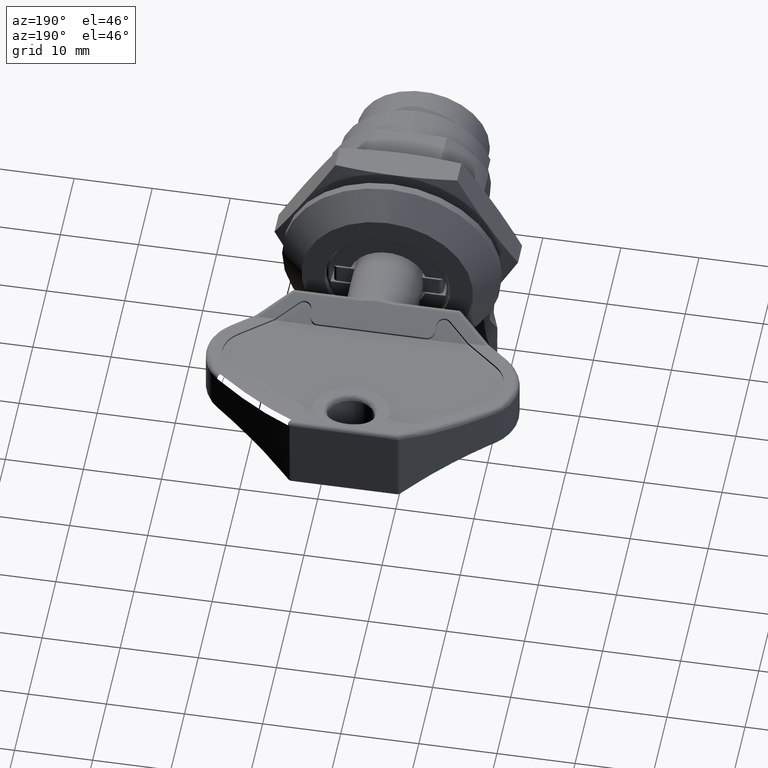
[diagram: clean part render]
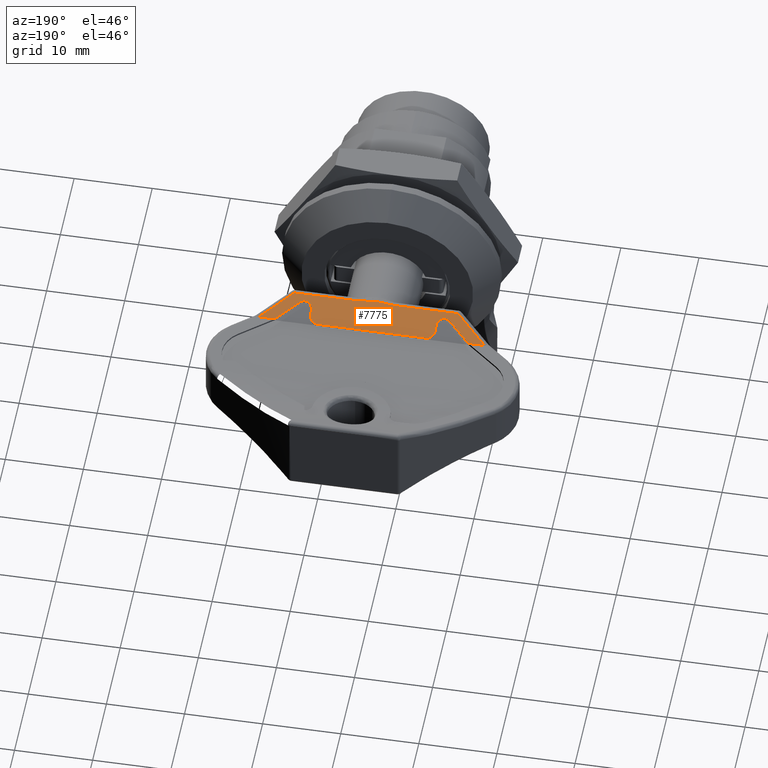
[diagram: same view with one face highlighted and labeled with its STEP entity id]
A machine part, auxiliary view. The second image highlights one B-rep face of the part: STEP entity #7775.
In plain terms, the highlighted planar face has unit normal (0, 0.4722, 0.8815).
Its self-contained STEP definition (entity closure, byte-faithful):
#41 = CARTESIAN_POINT ( 'NONE',  ( 2.068098806985044558, 36.88578643762680542, 11.77190012270027353 ) ) ;
#201 = CARTESIAN_POINT ( 'NONE',  ( 10.98586503355847555, 33.89057519146783903, 13.37647633497109467 ) ) ;
#263 = CARTESIAN_POINT ( 'NONE',  ( 9.801387449991239009, 33.84408355914582245, 13.40138380760066106 ) ) ;
#390 = DIRECTION ( 'NONE',  ( 0.7321513523004811175, 0.6004130123786246553, -0.3216498280599611737 ) ) ;
#454 = ORIENTED_EDGE ( 'NONE', *, *, #11848, .T. ) ;
#468 = EDGE_CURVE ( 'NONE', #15996, #15397, #18636, .T. ) ;
#530 = VERTEX_POINT ( 'NONE', #12694 ) ;
#562 = DIRECTION ( 'NONE',  ( 0.7321513523004833379, -0.6004130123786249884, 0.3216498280599550674 ) ) ;
#594 = ORIENTED_EDGE ( 'NONE', *, *, #15618, .T. ) ;
#674 = EDGE_CURVE ( 'NONE', #7319, #6873, #19051, .T. ) ;
#1136 = CARTESIAN_POINT ( 'NONE',  ( 8.011291028470781228, 34.01060382006741634, 13.31217652496409976 ) ) ;
#1239 = DIRECTION ( 'NONE',  ( 3.689814809305226357E-15, 0.4722214125153967323, 0.8814799700287939688 ) ) ;
#1337 = AXIS2_PLACEMENT_3D ( 'NONE', #11785, #1239, #19107 ) ;
#1443 = EDGE_CURVE ( 'NONE', #2561, #9745, #9863, .T. ) ;
#1500 = CARTESIAN_POINT ( 'NONE',  ( 2.068098806985057880, 35.80000000000011084, 12.35357142857171731 ) ) ;
#1536 = EDGE_CURVE ( 'NONE', #3117, #15996, #9769, .T. ) ;
#1636 = VERTEX_POINT ( 'NONE', #16438 ) ;
#1648 = CARTESIAN_POINT ( 'NONE',  ( 11.85404161314945704, 33.98885770955217112, 13.32382859536662423 ) ) ;
#1695 = VERTEX_POINT ( 'NONE', #9372 ) ;
#1709 = CARTESIAN_POINT ( 'NONE',  ( 9.244953549421287775, 33.87997746789123710, 13.38215492791560912 ) ) ;
#1743 = CARTESIAN_POINT ( 'NONE',  ( 10.27668981839960338, 33.84404871556767347, 13.40141359913249808 ) ) ;
#1839 = CARTESIAN_POINT ( 'NONE',  ( 11.48077395445161208, 33.94665565000695295, 13.34643421753339076 ) ) ;
#1952 = CARTESIAN_POINT ( 'NONE',  ( 2.482312369357855264, 37.29999999999990479, 11.55000000000041460 ) ) ;
#1974 = ORIENTED_EDGE ( 'NONE', *, *, #5186, .T. ) ;
#2031 = LINE ( 'NONE', #15569, #6052 ) ;
#2047 = CARTESIAN_POINT ( 'NONE',  ( 19.25313789094918349, 34.80000000000013927, 12.88928571428582970 ) ) ;
#2372 = CARTESIAN_POINT ( 'NONE',  ( 24.50330021323388152, 37.30000000000033111, 11.54999999999994209 ) ) ;
#2459 = CARTESIAN_POINT ( 'NONE',  ( -2.338032774425900406, 37.30000000000022453, 11.55000000000018012 ) ) ;
#2561 = VERTEX_POINT ( 'NONE', #2372 ) ;
#2674 = VECTOR ( 'NONE', #562, 1000.000000000000114 ) ;
#2707 = CARTESIAN_POINT ( 'NONE',  ( 12.58216110295674461, 34.03611527794630831, 13.29852065594927701 ) ) ;
#2717 = EDGE_CURVE ( 'NONE', #1636, #18068, #18884, .T. ) ;
#2881 = CARTESIAN_POINT ( 'NONE',  ( 22.42569822301332394, 37.30000000000116245, 11.55000000000006111 ) ) ;
#2958 = CARTESIAN_POINT ( 'NONE',  ( 18.01956664160304200, 35.80000000000011084, 12.35357142857158230 ) ) ;
#3018 = CARTESIAN_POINT ( 'NONE',  ( 12.40669266025145845, 34.03611119485928782, 13.29853450771142853 ) ) ;
#3117 = VERTEX_POINT ( 'NONE', #7422 ) ;
#3159 = CARTESIAN_POINT ( 'NONE',  ( 8.759549903139303595, 33.92903561672126500, 13.35587377675667398 ) ) ;
#3163 = EDGE_LOOP ( 'NONE', ( #454, #14066, #6922, #4675, #4935, #594, #11249, #3771, #6453, #16066, #7573, #5697, #13811, #19096, #1974, #18228, #14952, #15562, #3683 ) ) ;
#3170 =( BOUNDED_CURVE ( )  B_SPLINE_CURVE ( 3, ( #15296, #9388, #2047, #12310 ),
 .UNSPECIFIED., .F., .T. ) 
 B_SPLINE_CURVE_WITH_KNOTS ( ( 4, 4 ),
 ( 2.454735065986963782, 3.141592653589680761 ),
 .UNSPECIFIED. ) 
 CURVE ( )  GEOMETRIC_REPRESENTATION_ITEM ( )  RATIONAL_B_SPLINE_CURVE ( ( 1.000000000000000000, 0.9610704449949993844, 0.9610704449949993844, 1.000000000000000000 ) ) 
 REPRESENTATION_ITEM ( '' )  );
#3340 = CARTESIAN_POINT ( 'NONE',  ( 0.6145955454914971972, 34.87864755910916870, 12.84715309333467026 ) ) ;
#3546 = CARTESIAN_POINT ( 'NONE',  ( 19.01956664160315924, 34.80000000000016769, 12.88928571428581726 ) ) ;
#3683 = ORIENTED_EDGE ( 'NONE', *, *, #17371, .T. ) ;
#3771 = ORIENTED_EDGE ( 'NONE', *, *, #9681, .T. ) ;
#4131 = CARTESIAN_POINT ( 'NONE',  ( 8.020714751833667222, 34.00976685470045879, 13.31262489926782955 ) ) ;
#4230 = CARTESIAN_POINT ( 'NONE',  ( 19.65367711195293410, 35.02675753389217306, 12.76780846398652081 ) ) ;
#4288 = VERTEX_POINT ( 'NONE', #6161 ) ;
#4361 = CARTESIAN_POINT ( 'NONE',  ( 12.22614867533673788, 34.02423825557066550, 13.30486837677931966 ) ) ;
#4397 = DIRECTION ( 'NONE',  ( -1.000000000000000000, 1.627250025346605968E-17, 4.177214130152150694E-15 ) ) ;
#4519 = DIRECTION ( 'NONE',  ( -0.7321513523007928681, -0.6004130123783290029, 0.3216498280598029669 ) ) ;
#4594 = CARTESIAN_POINT ( 'NONE',  ( 0.4339883366351673932, 35.02675753389217306, 12.76780846398665581 ) ) ;
#4664 = CARTESIAN_POINT ( 'NONE',  ( 3.068098806984555615, 37.30000000000022453, 11.55000000000019966 ) ) ;
#4675 = ORIENTED_EDGE ( 'NONE', *, *, #15493, .F. ) ;
#4691 = CARTESIAN_POINT ( 'NONE',  ( 9.263386887974544237, 33.87841420747156462, 13.38299238885472242 ) ) ;
#4732 = CARTESIAN_POINT ( 'NONE',  ( 11.22521189455437174, 33.91714448758662570, 13.36224343937237791 ) ) ;
#4765 = VECTOR ( 'NONE', #7145, 1000.000000000000000 ) ;
#4801 = VERTEX_POINT ( 'NONE', #2459 ) ;
#4935 = ORIENTED_EDGE ( 'NONE', *, *, #2717, .F. ) ;
#5006 = DIRECTION ( 'NONE',  ( -1.958226073884003396E-15, 0.8814799700287939688, -0.4722214125153967323 ) ) ;
#5186 = EDGE_CURVE ( 'NONE', #15397, #4288, #5188, .T. ) ;
#5188 = LINE ( 'NONE', #11091, #8861 ) ;
#5324 = VECTOR ( 'NONE', #14239, 1000.000000000000000 ) ;
#5474 = CARTESIAN_POINT ( 'NONE',  ( 7.862095765990439133, 34.02263692237738724, 13.30573022015519769 ) ) ;
#5697 = ORIENTED_EDGE ( 'NONE', *, *, #9111, .T. ) ;
#5812 = CARTESIAN_POINT ( 'NONE',  ( 30.04383272429412699, 34.03611070625805723, 13.29851212164763297 ) ) ;
#5901 = VECTOR ( 'NONE', #12691, 1000.000000000000000 ) ;
#6052 = VECTOR ( 'NONE', #390, 999.9999999999998863 ) ;
#6161 = CARTESIAN_POINT ( 'NONE',  ( 2.068098806985057880, 35.80000000000011084, 12.35357142857171731 ) ) ;
#6178 = CARTESIAN_POINT ( 'NONE',  ( 12.58216110295674461, 34.03611527794630831, 13.29852065594927701 ) ) ;
#6218 = CARTESIAN_POINT ( 'NONE',  ( 1.068098806985170901, 34.80000000000016769, 12.88928571428591852 ) ) ;
#6260 =( BOUNDED_CURVE ( )  B_SPLINE_CURVE ( 3, ( #13406, #7389, #17653, #2958 ),
 .UNSPECIFIED., .F., .T. ) 
 B_SPLINE_CURVE_WITH_KNOTS ( ( 4, 4 ),
 ( 3.141592653589680761, 4.712388980384696779 ),
 .UNSPECIFIED. ) 
 CURVE ( )  GEOMETRIC_REPRESENTATION_ITEM ( )  RATIONAL_B_SPLINE_CURVE ( ( 1.000000000000000000, 0.8047378541243368488, 0.8047378541243368488, 1.000000000000000000 ) ) 
 REPRESENTATION_ITEM ( '' )  );
#6453 = ORIENTED_EDGE ( 'NONE', *, *, #13697, .T. ) ;
#6873 = VERTEX_POINT ( 'NONE', #10011 ) ;
#6922 = ORIENTED_EDGE ( 'NONE', *, *, #18543, .T. ) ;
#7008 = CARTESIAN_POINT ( 'NONE',  ( 18.01956664160309884, 36.30000000000011084, 12.08571428571448436 ) ) ;
#7031 = VECTOR ( 'NONE', #8488, 1000.000000000000114 ) ;
#7145 = DIRECTION ( 'NONE',  ( 1.000000000000000000, -1.627250025346605968E-17, -4.177214130152150694E-15 ) ) ;
#7313 = CARTESIAN_POINT ( 'NONE',  ( 9.276317204815644146, 33.87733611920150167, 13.38356993614226731 ) ) ;
#7319 = VERTEX_POINT ( 'NONE', #7724 ) ;
#7384 = CARTESIAN_POINT ( 'NONE',  ( 2.068098806985017912, 35.21421356237327416, 12.66738559158604716 ) ) ;
#7389 = CARTESIAN_POINT ( 'NONE',  ( 18.43378020397619821, 34.80000000000004690, 12.88928571428588654 ) ) ;
#7422 = CARTESIAN_POINT ( 'NONE',  ( 17.01956664160409005, 37.30000000000005400, 11.55000000000019611 ) ) ;
#7444 = EDGE_CURVE ( 'NONE', #18044, #4801, #9660, .T. ) ;
#7446 = CARTESIAN_POINT ( 'NONE',  ( 11.49302238360133899, 33.94807040850941604, 13.34567632292403161 ) ) ;
#7500 = CARTESIAN_POINT ( 'NONE',  ( 8.027010092721702961, 34.00920442246392383, 13.31292620225167767 ) ) ;
#7521 = VECTOR ( 'NONE', #5006, 1000.000000000000227 ) ;
#7533 = CARTESIAN_POINT ( 'NONE',  ( 11.71102990675940880, 33.97304822499276611, 13.33229516919790392 ) ) ;
#7573 = ORIENTED_EDGE ( 'NONE', *, *, #14289, .T. ) ;
#7593 = CARTESIAN_POINT ( 'NONE',  ( 8.146061458922837062, 33.99844534677049523, 13.31868999280173860 ) ) ;
#7701 = CARTESIAN_POINT ( 'NONE',  ( 3.068098806984555615, 37.30000000000022453, 11.55000000000019966 ) ) ;
#7719 = CARTESIAN_POINT ( 'NONE',  ( 10.51161297195080735, 33.85410553790398325, 13.39603184769599586 ) ) ;
#7724 = CARTESIAN_POINT ( 'NONE',  ( -0.4356061661558909837, 34.03611070625534296, 13.29851212164882845 ) ) ;
#7775 = ADVANCED_FACE ( 'NONE', ( #16037 ), #10512, .T. ) ;
#7801 = CARTESIAN_POINT ( 'NONE',  ( -4.415634764645901988, 37.30000000000016769, 11.55000000000027249 ) ) ;
#7810 = LINE ( 'NONE', #18254, #7521 ) ;
#7930 = VECTOR ( 'NONE', #4519, 999.9999999999998863 ) ;
#8307 = CARTESIAN_POINT ( 'NONE',  ( 30.04383272429411988, 37.30000000000027427, 11.55000000000014104 ) ) ;
#8488 = DIRECTION ( 'NONE',  ( -0.7321513523007951996, 0.6004130123783293360, -0.3216498280597969162 ) ) ;
#8598 = VERTEX_POINT ( 'NONE', #3546 ) ;
#8766 =( BOUNDED_CURVE ( )  B_SPLINE_CURVE ( 3, ( #7008, #12949, #17281, #15545 ),
 .UNSPECIFIED., .F., .T. ) 
 B_SPLINE_CURVE_WITH_KNOTS ( ( 4, 4 ),
 ( 4.712388980384732307, 6.283185307178587919 ),
 .UNSPECIFIED. ) 
 CURVE ( )  GEOMETRIC_REPRESENTATION_ITEM ( )  RATIONAL_B_SPLINE_CURVE ( ( 1.000000000000000000, 0.8047378541243750405, 0.8047378541243750405, 1.000000000000000000 ) ) 
 REPRESENTATION_ITEM ( '' )  );
#8861 = VECTOR ( 'NONE', #17188, 1000.000000000000227 ) ;
#8909 = CARTESIAN_POINT ( 'NONE',  ( 11.63902431557163908, 33.96489488123269496, 13.33666299868119332 ) ) ;
#8947 = CARTESIAN_POINT ( 'NONE',  ( 0.8345275576390811523, 34.80000000000013927, 12.88928571428593450 ) ) ;
#8963 = CARTESIAN_POINT ( 'NONE',  ( 8.031563210057914404, 34.00879452537192549, 13.31314578997954179 ) ) ;
#9028 = CARTESIAN_POINT ( 'NONE',  ( 1.653885244611992711, 34.80000000000022453, 12.88928571428588121 ) ) ;
#9111 = EDGE_CURVE ( 'NONE', #1695, #3117, #8766, .T. ) ;
#9152 = CARTESIAN_POINT ( 'NONE',  ( 9.547253521333834314, 33.85505102942889977, 13.39550837709187014 ) ) ;
#9350 = VERTEX_POINT ( 'NONE', #12575 ) ;
#9372 = CARTESIAN_POINT ( 'NONE',  ( 18.01956664160309884, 36.30000000000011084, 12.08571428571448436 ) ) ;
#9388 = CARTESIAN_POINT ( 'NONE',  ( 19.47306990309669672, 34.87864755910917580, 12.84715309333456013 ) ) ;
#9472 = CARTESIAN_POINT ( 'NONE',  ( 10.04383267837817151, 33.84401244813734166, 13.40142300029234335 ) ) ;
#9660 = LINE ( 'NONE', #18553, #7031 ) ;
#9681 = EDGE_CURVE ( 'NONE', #9745, #18491, #18822, .T. ) ;
#9745 = VERTEX_POINT ( 'NONE', #2881 ) ;
#9769 = LINE ( 'NONE', #13080, #10847 ) ;
#9863 = LINE ( 'NONE', #18948, #5901 ) ;
#10011 = CARTESIAN_POINT ( 'NONE',  ( 7.505506439304819644, 34.03611318534011332, 13.29851674985743060 ) ) ;
#10169 = DIRECTION ( 'NONE',  ( -1.000000000000000000, 1.627250025346605968E-17, 4.177214130152150694E-15 ) ) ;
#10511 = CARTESIAN_POINT ( 'NONE',  ( 9.271161761859492145, 33.87776463500490820, 13.38334037410472277 ) ) ;
#10512 = PLANE ( 'NONE',  #1337 ) ;
#10597 = CARTESIAN_POINT ( 'NONE',  ( 10.04383267837817151, 33.84401244813734166, 13.40142300029234335 ) ) ;
#10847 = VECTOR ( 'NONE', #10169, 1000.000000000000000 ) ;
#11091 = CARTESIAN_POINT ( 'NONE',  ( 2.068098806985014360, 30.30000000000010374, 15.30000000000008065 ) ) ;
#11249 = ORIENTED_EDGE ( 'NONE', *, *, #1443, .T. ) ;
#11267 = VERTEX_POINT ( 'NONE', #18588 ) ;
#11558 = CARTESIAN_POINT ( 'NONE',  ( -0.7510360155659114856, 34.03611070625778012, 13.29851212164744290 ) ) ;
#11785 = CARTESIAN_POINT ( 'NONE',  ( 30.04383272429402396, 30.30000000000010374, 15.29999999999995097 ) ) ;
#11844 = CARTESIAN_POINT ( 'NONE',  ( 2.068098806985113391, 36.30000000000011084, 12.08571428571456430 ) ) ;
#11848 = EDGE_CURVE ( 'NONE', #530, #7319, #16615, .T. ) ;
#11953 = CARTESIAN_POINT ( 'NONE',  ( 1.068098806985170901, 34.80000000000016769, 12.88928571428591852 ) ) ;
#12010 = CARTESIAN_POINT ( 'NONE',  ( 10.04383267837817151, 33.84401244813734166, 13.40142300029234335 ) ) ;
#12070 = CARTESIAN_POINT ( 'NONE',  ( 9.277277460461499814, 33.87725601735854042, 13.38361284784384964 ) ) ;
#12103 = CARTESIAN_POINT ( 'NONE',  ( 11.94801579287138615, 33.99871394682063652, 13.31855157935433986 ) ) ;
#12232 = VECTOR ( 'NONE', #4397, 1000.000000000000000 ) ;
#12310 = CARTESIAN_POINT ( 'NONE',  ( 19.01956664160315924, 34.80000000000016769, 12.88928571428581726 ) ) ;
#12575 = CARTESIAN_POINT ( 'NONE',  ( 18.01956664160304200, 35.80000000000011084, 12.35357142857158230 ) ) ;
#12585 = LINE ( 'NONE', #8307, #5324 ) ;
#12691 = DIRECTION ( 'NONE',  ( -1.000000000000000000, 1.627250025346605968E-17, 4.177214130152150694E-15 ) ) ;
#12694 = CARTESIAN_POINT ( 'NONE',  ( -4.415634764645679944, 37.30000000000022453, 11.55000000000005045 ) ) ;
#12752 = CARTESIAN_POINT ( 'NONE',  ( 7.702388157319824735, 34.03264656612129357, 13.30036791100665639 ) ) ;
#12949 = CARTESIAN_POINT ( 'NONE',  ( 18.01956664160306687, 36.88578643762698306, 11.77190012270007635 ) ) ;
#12957 = CARTESIAN_POINT ( 'NONE',  ( 22.42569822301410198, 37.30000000000022453, 11.55000000000011795 ) ) ;
#13080 = CARTESIAN_POINT ( 'NONE',  ( 30.04383272429411988, 37.30000000000027427, 11.55000000000014104 ) ) ;
#13366 = CARTESIAN_POINT ( 'NONE',  ( 11.47611120317509048, 33.94611705682569180, 13.34672274424134386 ) ) ;
#13406 = CARTESIAN_POINT ( 'NONE',  ( 19.01956664160315924, 34.80000000000016769, 12.88928571428581726 ) ) ;
#13697 = EDGE_CURVE ( 'NONE', #18491, #8598, #3170, .T. ) ;
#13811 = ORIENTED_EDGE ( 'NONE', *, *, #1536, .T. ) ;
#13936 = EDGE_CURVE ( 'NONE', #11267, #18044, #15542, .T. ) ;
#14066 = ORIENTED_EDGE ( 'NONE', *, *, #674, .T. ) ;
#14073 = B_SPLINE_CURVE_WITH_KNOTS ( 'NONE', 3,
 ( #6178, #3018, #4361, #12103, #1648, #7533, #8909, #16440, #17978, #7446, #1839, #13366, #4732, #201, #7719, #1743, #12010 ),
 .UNSPECIFIED., .F., .F.,
 ( 4, 2, 2, 1, 1, 1, 2, 2, 2, 4 ),
 ( 0.0000000000000000000, 0.2500000000000076605, 0.3750000000000122680, 0.4375000000000156541, 0.4687500000000184297, 0.4843750000000208722, 0.4921875000000225930, 0.5000000000000242029, 0.7500000000000121014, 1.000000000000000000 ),
 .UNSPECIFIED. ) ;
#14214 = CARTESIAN_POINT ( 'NONE',  ( 7.580309081639414082, 34.03609372610976180, 13.29852121815570598 ) ) ;
#14239 = DIRECTION ( 'NONE',  ( -1.000000000000000000, 1.627250025346605968E-17, 4.177214130152150694E-15 ) ) ;
#14289 = EDGE_CURVE ( 'NONE', #9350, #1695, #7810, .T. ) ;
#14345 = CARTESIAN_POINT ( 'NONE',  ( 2.068098806985113391, 36.30000000000011084, 12.08571428571456430 ) ) ;
#14399 = CARTESIAN_POINT ( 'NONE',  ( 7.989437356408243041, 34.01250995834222124, 13.31115537945974836 ) ) ;
#14952 = ORIENTED_EDGE ( 'NONE', *, *, #13936, .T. ) ;
#14970 = CARTESIAN_POINT ( 'NONE',  ( 8.343916135940382617, 33.97701698182610386, 13.33016947402195740 ) ) ;
#15296 = CARTESIAN_POINT ( 'NONE',  ( 19.65367711195293410, 35.02675753389217306, 12.76780846398652081 ) ) ;
#15397 = VERTEX_POINT ( 'NONE', #14345 ) ;
#15493 = EDGE_CURVE ( 'NONE', #18068, #15638, #14073, .T. ) ;
#15542 =( BOUNDED_CURVE ( )  B_SPLINE_CURVE ( 3, ( #6218, #8947, #3340, #4594 ),
 .UNSPECIFIED., .F., .T. ) 
 B_SPLINE_CURVE_WITH_KNOTS ( ( 4, 4 ),
 ( 3.141592653589681206, 3.828450241192579373 ),
 .UNSPECIFIED. ) 
 CURVE ( )  GEOMETRIC_REPRESENTATION_ITEM ( )  RATIONAL_B_SPLINE_CURVE ( ( 1.000000000000000000, 0.9610704449949789563, 0.9610704449949789563, 1.000000000000000000 ) ) 
 REPRESENTATION_ITEM ( '' )  );
#15545 = CARTESIAN_POINT ( 'NONE',  ( 17.01956664160409005, 37.30000000000005400, 11.55000000000019611 ) ) ;
#15562 = ORIENTED_EDGE ( 'NONE', *, *, #7444, .T. ) ;
#15569 = CARTESIAN_POINT ( 'NONE',  ( 20.52327161474410389, 34.03611070625795065, 13.29851212164763119 ) ) ;
#15618 = EDGE_CURVE ( 'NONE', #1636, #2561, #2031, .T. ) ;
#15638 = VERTEX_POINT ( 'NONE', #9472 ) ;
#15652 = CARTESIAN_POINT ( 'NONE',  ( 7.505506439304819644, 34.03611318534011332, 13.29851674985743060 ) ) ;
#15660 =( BOUNDED_CURVE ( )  B_SPLINE_CURVE ( 3, ( #1500, #7384, #9028, #11953 ),
 .UNSPECIFIED., .F., .T. ) 
 B_SPLINE_CURVE_WITH_KNOTS ( ( 4, 4 ),
 ( 1.570796326794965170, 3.141592653589681206 ),
 .UNSPECIFIED. ) 
 CURVE ( )  GEOMETRIC_REPRESENTATION_ITEM ( )  RATIONAL_B_SPLINE_CURVE ( ( 1.000000000000000000, 0.8047378541244075700, 0.8047378541244075700, 1.000000000000000000 ) ) 
 REPRESENTATION_ITEM ( '' )  );
#15996 = VERTEX_POINT ( 'NONE', #7701 ) ;
#16037 = FACE_OUTER_BOUND ( 'NONE', #3163, .T. ) ;
#16055 = CARTESIAN_POINT ( 'NONE',  ( 0.4339883366351673932, 35.02675753389217306, 12.76780846398665581 ) ) ;
#16066 = ORIENTED_EDGE ( 'NONE', *, *, #16538, .T. ) ;
#16230 = CARTESIAN_POINT ( 'NONE',  ( 9.126178465760645508, 33.89068958767174422, 13.37641629231891649 ) ) ;
#16438 = CARTESIAN_POINT ( 'NONE',  ( 20.52327161474432771, 34.03611070625767354, 13.29851212164768626 ) ) ;
#16440 = CARTESIAN_POINT ( 'NONE',  ( 11.55408615476379453, 33.95512144934342302, 13.34189898757560044 ) ) ;
#16538 = EDGE_CURVE ( 'NONE', #8598, #9350, #6260, .T. ) ;
#16615 = LINE ( 'NONE', #7801, #2674 ) ;
#17188 = DIRECTION ( 'NONE',  ( 1.958226073884003396E-15, -0.8814799700287939688, 0.4722214125153967323 ) ) ;
#17191 = CARTESIAN_POINT ( 'NONE',  ( 7.946270075419938017, 34.01613511123272104, 13.30921333326840816 ) ) ;
#17281 = CARTESIAN_POINT ( 'NONE',  ( 17.60535307922997461, 37.30000000000005400, 11.55000000000023164 ) ) ;
#17371 = EDGE_CURVE ( 'NONE', #4801, #530, #12585, .T. ) ;
#17578 = CARTESIAN_POINT ( 'NONE',  ( 8.946011547970043054, 33.90852590007884970, 13.36686112495798540 ) ) ;
#17653 = CARTESIAN_POINT ( 'NONE',  ( 18.01956664160303845, 35.21421356237316047, 12.66738559158601696 ) ) ;
#17858 = CARTESIAN_POINT ( 'NONE',  ( 9.206919007694629897, 33.88329435405380963, 13.38037802461423631 ) ) ;
#17978 = CARTESIAN_POINT ( 'NONE',  ( 11.51137771785990971, 33.95019061918177528, 13.34454050935877945 ) ) ;
#18044 = VERTEX_POINT ( 'NONE', #16055 ) ;
#18068 = VERTEX_POINT ( 'NONE', #2707 ) ;
#18228 = ORIENTED_EDGE ( 'NONE', *, *, #18913, .T. ) ;
#18254 = CARTESIAN_POINT ( 'NONE',  ( 18.01956664160299582, 30.30000000000016058, 15.29999999999998650 ) ) ;
#18491 = VERTEX_POINT ( 'NONE', #4230 ) ;
#18543 = EDGE_CURVE ( 'NONE', #6873, #15638, #18747, .T. ) ;
#18553 = CARTESIAN_POINT ( 'NONE',  ( 0.4339883366350563709, 35.02675753389239333, 12.76780846398654568 ) ) ;
#18588 = CARTESIAN_POINT ( 'NONE',  ( 1.068098806985170901, 34.80000000000016769, 12.88928571428591852 ) ) ;
#18636 =( BOUNDED_CURVE ( )  B_SPLINE_CURVE ( 3, ( #4664, #1952, #41, #11844 ),
 .UNSPECIFIED., .F., .F. ) 
 B_SPLINE_CURVE_WITH_KNOTS ( ( 4, 4 ),
 ( 5.554920767427773361E-13, 1.570796326795011577 ),
 .UNSPECIFIED. ) 
 CURVE ( )  GEOMETRIC_REPRESENTATION_ITEM ( )  RATIONAL_B_SPLINE_CURVE ( ( 1.000000000000000000, 0.8047378541244688543, 0.8047378541244688543, 1.000000000000000000 ) ) 
 REPRESENTATION_ITEM ( '' )  );
#18747 = B_SPLINE_CURVE_WITH_KNOTS ( 'NONE', 3,
 ( #15652, #14214, #12752, #5474, #17191, #14399, #1136, #4131, #7500, #8963, #7593, #14970, #3159, #17578, #16230, #17858, #1709, #4691, #10511, #7313, #12070, #9152, #263, #10597 ),
 .UNSPECIFIED., .F., .F.,
 ( 4, 1, 1, 1, 1, 1, 2, 2, 2, 1, 1, 1, 1, 1, 2, 2, 4 ),
 ( 0.0000000000000000000, 0.1249999999999755751, 0.1874999999999627243, 0.2187499999999560074, 0.2343749999999519273, 0.2421874999999487910, 0.2460937499999468758, 0.2499999999999449329, 0.4999999999999127365, 0.6249999999998966382, 0.6874999999998896438, 0.7187499999998865352, 0.7343749999998857581, 0.7421874999998867573, 0.7460937499998884226, 0.7499999999998900879, 1.000000000000000000 ),
 .UNSPECIFIED. ) ;
#18822 = LINE ( 'NONE', #12957, #7930 ) ;
#18884 = LINE ( 'NONE', #11558, #12232 ) ;
#18913 = EDGE_CURVE ( 'NONE', #4288, #11267, #15660, .T. ) ;
#18948 = CARTESIAN_POINT ( 'NONE',  ( 30.04383272429411988, 37.30000000000027427, 11.55000000000014104 ) ) ;
#19051 = LINE ( 'NONE', #5812, #4765 ) ;
#19096 = ORIENTED_EDGE ( 'NONE', *, *, #468, .T. ) ;
#19107 = DIRECTION ( 'NONE',  ( -1.958226073884003396E-15, 0.8814799700287939688, -0.4722214125153967323 ) ) ;